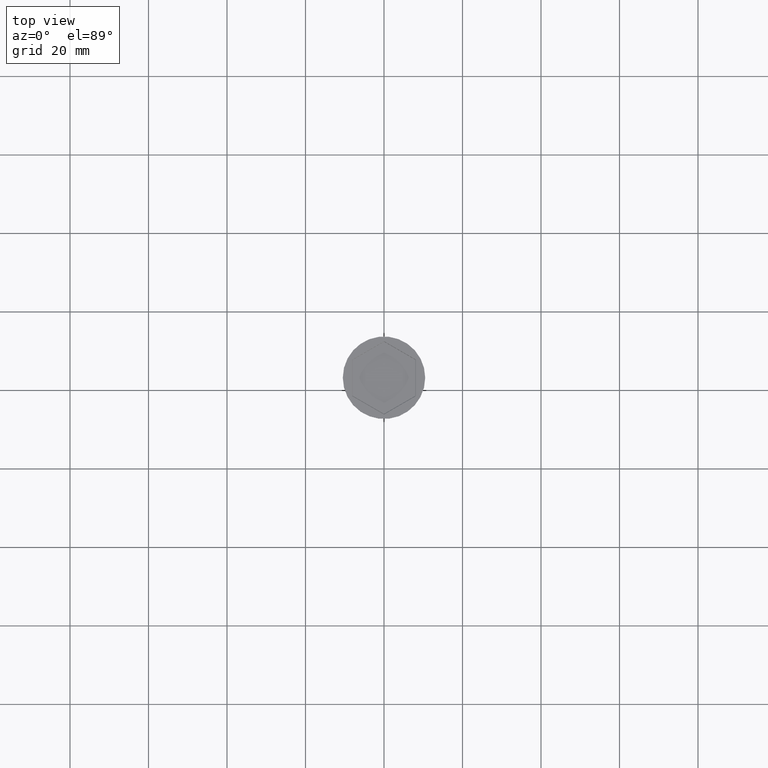
[diagram: clean part render]
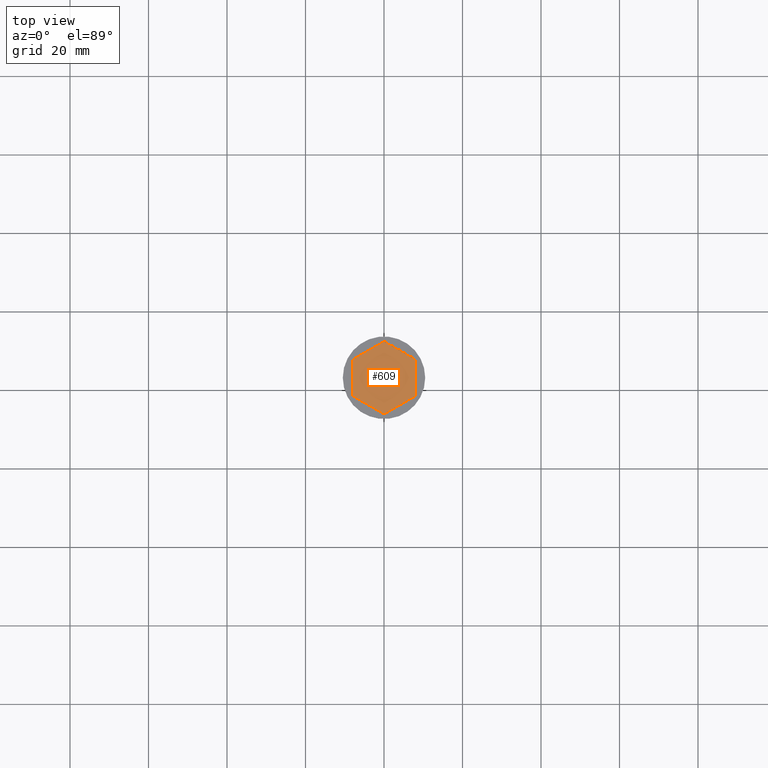
[diagram: same view with one face highlighted and labeled with its STEP entity id]
A machine part, top view. The second image highlights one B-rep face of the part: STEP entity #609.
In plain terms, the highlighted planar face has unit normal (-0, 0, 1).
Its self-contained STEP definition (entity closure, byte-faithful):
#54 = ORIENTED_EDGE ( 'NONE', *, *, #1594, .T. ) ;
#67 = LINE ( 'NONE', #1026, #840 ) ;
#83 = CARTESIAN_POINT ( 'NONE',  ( 0.000000000000000000, 0.000000000000000000, -2.000000000000000000 ) ) ;
#149 = CARTESIAN_POINT ( 'NONE',  ( -8.000000000000000000, 0.000000000000000000, -2.000000000000000000 ) ) ;
#154 = CARTESIAN_POINT ( 'NONE',  ( 8.000000000000000000, 0.000000000000000000, -2.000000000000000000 ) ) ;
#224 = EDGE_CURVE ( 'NONE', #975, #1424, #582, .T. ) ;
#238 = DIRECTION ( 'NONE',  ( 0.000000000000000000, -1.000000000000000000, 0.000000000000000000 ) ) ;
#335 = ORIENTED_EDGE ( 'NONE', *, *, #1070, .T. ) ;
#336 = CARTESIAN_POINT ( 'NONE',  ( -4.000000000000000000, -6.928203230275510549, -2.000000000000000000 ) ) ;
#353 = VECTOR ( 'NONE', #1447, 999.9999999999998863 ) ;
#356 = CARTESIAN_POINT ( 'NONE',  ( 8.000000000000000000, 4.618802153517003184, -2.000000000000000000 ) ) ;
#376 = VERTEX_POINT ( 'NONE', #980 ) ;
#382 = CARTESIAN_POINT ( 'NONE',  ( 0.000000000000000000, -9.237604307034013473, -2.000000000000000000 ) ) ;
#493 = CARTESIAN_POINT ( 'NONE',  ( -3.999999999999998224, 6.928203230275506108, -2.000000000000000000 ) ) ;
#526 = VERTEX_POINT ( 'NONE', #1005 ) ;
#554 = EDGE_CURVE ( 'NONE', #1310, #1422, #580, .T. ) ;
#580 = LINE ( 'NONE', #1328, #353 ) ;
#582 = LINE ( 'NONE', #336, #762 ) ;
#600 = DIRECTION ( 'NONE',  ( 1.000000000000000000, 0.000000000000000000, 0.000000000000000000 ) ) ;
#605 = PLANE ( 'NONE',  #1129 ) ;
#609 = ADVANCED_FACE ( 'NONE', ( #851 ), #605, .T. ) ;
#631 = VECTOR ( 'NONE', #238, 1000.000000000000000 ) ;
#666 = DIRECTION ( 'NONE',  ( 0.000000000000000000, 1.000000000000000000, -0.000000000000000000 ) ) ;
#762 = VECTOR ( 'NONE', #1196, 999.9999999999998863 ) ;
#782 = LINE ( 'NONE', #154, #1247 ) ;
#816 = CARTESIAN_POINT ( 'NONE',  ( -8.000000000000000000, -4.618802153517008513, -2.000000000000000000 ) ) ;
#840 = VECTOR ( 'NONE', #904, 999.9999999999998863 ) ;
#844 = DIRECTION ( 'NONE',  ( -0.000000000000000000, 0.000000000000000000, 1.000000000000000000 ) ) ;
#851 = FACE_OUTER_BOUND ( 'NONE', #1521, .T. ) ;
#904 = DIRECTION ( 'NONE',  ( 0.8660254037844387076, 0.4999999999999999445, 0.000000000000000000 ) ) ;
#975 = VERTEX_POINT ( 'NONE', #816 ) ;
#980 = CARTESIAN_POINT ( 'NONE',  ( 8.000000000000000000, -4.618802153517008513, -2.000000000000000000 ) ) ;
#988 = CARTESIAN_POINT ( 'NONE',  ( 0.000000000000000000, 9.237604307034009921, -2.000000000000000000 ) ) ;
#991 = LINE ( 'NONE', #493, #1327 ) ;
#1005 = CARTESIAN_POINT ( 'NONE',  ( -8.000000000000000000, 4.618802153517002296, -2.000000000000000000 ) ) ;
#1008 = LINE ( 'NONE', #149, #631 ) ;
#1016 = ORIENTED_EDGE ( 'NONE', *, *, #224, .T. ) ;
#1024 = ORIENTED_EDGE ( 'NONE', *, *, #1028, .T. ) ;
#1026 = CARTESIAN_POINT ( 'NONE',  ( 4.000000000000000000, -6.928203230275510549, -2.000000000000000000 ) ) ;
#1028 = EDGE_CURVE ( 'NONE', #1422, #526, #991, .T. ) ;
#1030 = ORIENTED_EDGE ( 'NONE', *, *, #1151, .T. ) ;
#1070 = EDGE_CURVE ( 'NONE', #526, #975, #1008, .T. ) ;
#1129 = AXIS2_PLACEMENT_3D ( 'NONE', #83, #844, #600 ) ;
#1151 = EDGE_CURVE ( 'NONE', #1424, #376, #67, .T. ) ;
#1189 = ORIENTED_EDGE ( 'NONE', *, *, #554, .T. ) ;
#1196 = DIRECTION ( 'NONE',  ( 0.8660254037844387076, -0.4999999999999999445, 0.000000000000000000 ) ) ;
#1247 = VECTOR ( 'NONE', #666, 1000.000000000000000 ) ;
#1310 = VERTEX_POINT ( 'NONE', #356 ) ;
#1327 = VECTOR ( 'NONE', #1489, 999.9999999999998863 ) ;
#1328 = CARTESIAN_POINT ( 'NONE',  ( 3.999999999999998224, 6.928203230275506108, -2.000000000000000000 ) ) ;
#1422 = VERTEX_POINT ( 'NONE', #988 ) ;
#1424 = VERTEX_POINT ( 'NONE', #382 ) ;
#1447 = DIRECTION ( 'NONE',  ( -0.8660254037844387076, 0.5000000000000001110, 0.000000000000000000 ) ) ;
#1489 = DIRECTION ( 'NONE',  ( -0.8660254037844387076, -0.5000000000000001110, 0.000000000000000000 ) ) ;
#1521 = EDGE_LOOP ( 'NONE', ( #1189, #1024, #335, #1016, #1030, #54 ) ) ;
#1594 = EDGE_CURVE ( 'NONE', #376, #1310, #782, .T. ) ;